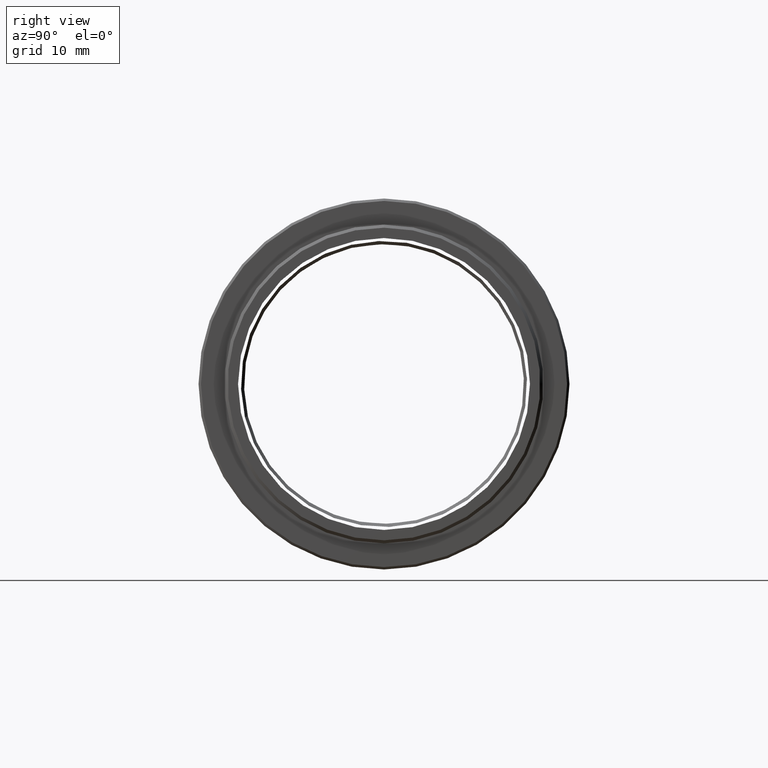
[diagram: clean part render]
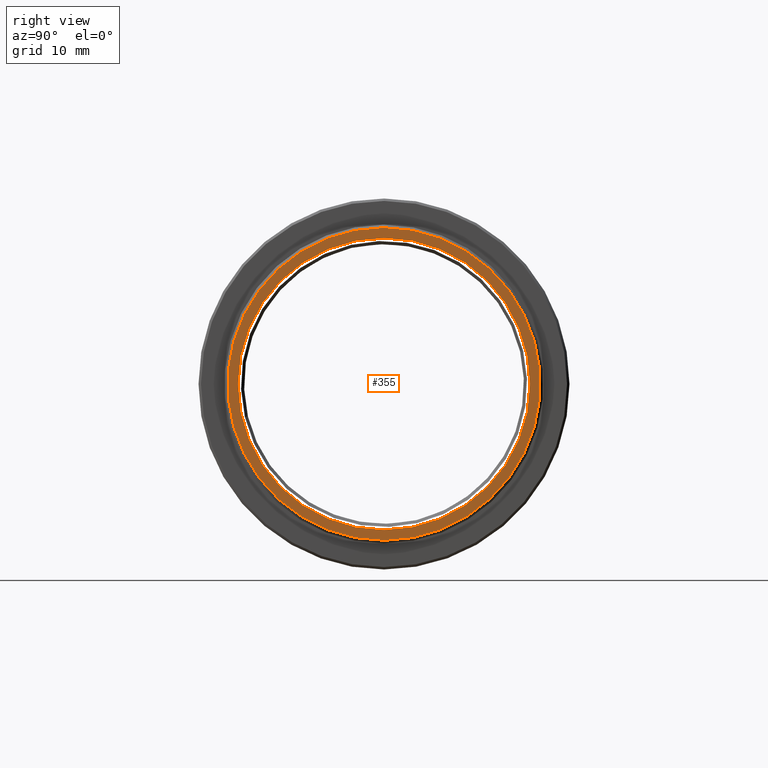
[diagram: same view with one face highlighted and labeled with its STEP entity id]
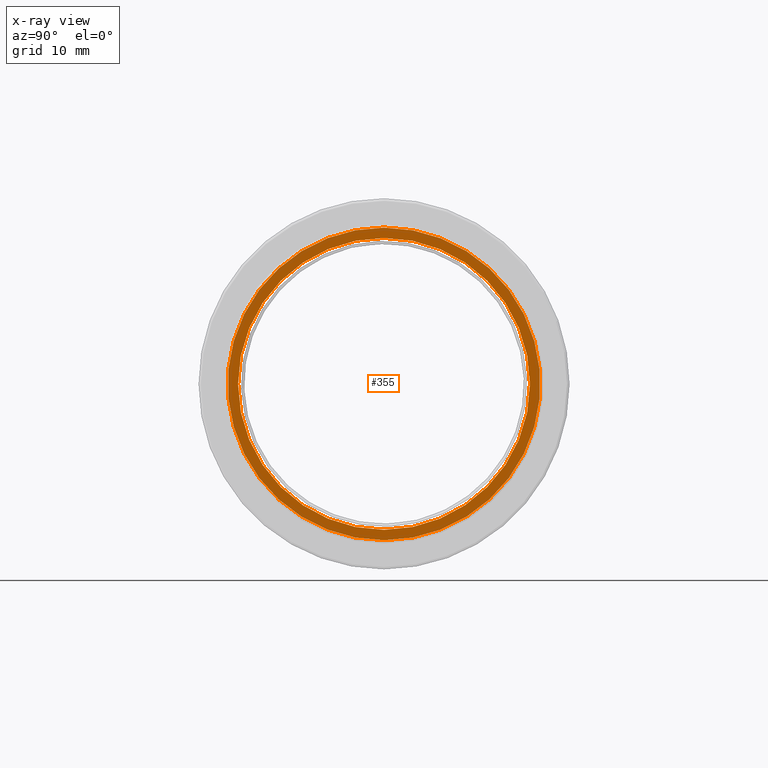
[diagram: x-ray of the same camera — body ghosted, the highlighted face saturated]
A machine part, right view. The second image highlights one B-rep face of the part: STEP entity #355.
The next image is the same camera in x-ray: the body ghosted, the highlighted face saturated — about 0% of this face is hidden behind the body in this view.
In plain terms, the highlighted planar face has unit normal (1, 0, 0).
Its self-contained STEP definition (entity closure, byte-faithful):
#61 = CIRCLE ( 'NONE', #424, 12.00000000000000178 ) ;
#90 = CARTESIAN_POINT ( 'NONE',  ( 6.525999999999982926, -20.10857142857141966, 0.000000000000000000 ) ) ;
#106 = VERTEX_POINT ( 'NONE', #1182 ) ;
#118 = EDGE_CURVE ( 'NONE', #1409, #106, #305, .T. ) ;
#157 = VERTEX_POINT ( 'NONE', #1545 ) ;
#198 = EDGE_CURVE ( 'NONE', #106, #1409, #61, .T. ) ;
#217 = FACE_BOUND ( 'NONE', #1197, .T. ) ;
#221 = DIRECTION ( 'NONE',  ( 1.000000000000000000, 0.000000000000000000, 0.000000000000000000 ) ) ;
#222 = DIRECTION ( 'NONE',  ( 0.000000000000000000, 0.000000000000000000, -1.000000000000000000 ) ) ;
#259 = CARTESIAN_POINT ( 'NONE',  ( 6.525999999999982926, -20.10857142857141966, 0.000000000000000000 ) ) ;
#262 = DIRECTION ( 'NONE',  ( 0.000000000000000000, 0.000000000000000000, -1.000000000000000000 ) ) ;
#271 = AXIS2_PLACEMENT_3D ( 'NONE', #90, #221, #960 ) ;
#305 = CIRCLE ( 'NONE', #1230, 12.00000000000000178 ) ;
#355 = ADVANCED_FACE ( 'NONE', ( #770, #217 ), #1227, .T. ) ;
#424 = AXIS2_PLACEMENT_3D ( 'NONE', #1206, #586, #1099 ) ;
#429 = CARTESIAN_POINT ( 'NONE',  ( 6.525999999999982926, -20.10857142857141966, 0.000000000000000000 ) ) ;
#486 = ORIENTED_EDGE ( 'NONE', *, *, #198, .F. ) ;
#494 = CARTESIAN_POINT ( 'NONE',  ( 6.525999999999982926, -20.10857142857141966, 0.000000000000000000 ) ) ;
#512 = DIRECTION ( 'NONE',  ( 1.000000000000000000, 0.000000000000000000, 0.000000000000000000 ) ) ;
#576 = AXIS2_PLACEMENT_3D ( 'NONE', #259, #512, #262 ) ;
#586 = DIRECTION ( 'NONE',  ( 1.000000000000000000, 0.000000000000000000, 0.000000000000000000 ) ) ;
#616 = DIRECTION ( 'NONE',  ( 0.000000000000000000, 0.000000000000000000, -1.000000000000000000 ) ) ;
#662 = VERTEX_POINT ( 'NONE', #1220 ) ;
#770 = FACE_OUTER_BOUND ( 'NONE', #953, .T. ) ;
#814 = ORIENTED_EDGE ( 'NONE', *, *, #1246, .T. ) ;
#876 = ORIENTED_EDGE ( 'NONE', *, *, #1086, .T. ) ;
#881 = CIRCLE ( 'NONE', #576, 12.85000000000001386 ) ;
#953 = EDGE_LOOP ( 'NONE', ( #876, #814 ) ) ;
#960 = DIRECTION ( 'NONE',  ( 0.000000000000000000, 0.000000000000000000, -1.000000000000000000 ) ) ;
#1042 = CIRCLE ( 'NONE', #271, 12.85000000000001386 ) ;
#1086 = EDGE_CURVE ( 'NONE', #662, #157, #1042, .T. ) ;
#1099 = DIRECTION ( 'NONE',  ( 0.000000000000000000, 0.000000000000000000, -1.000000000000000000 ) ) ;
#1182 = CARTESIAN_POINT ( 'NONE',  ( 6.525999999999982926, -20.10857142857141966, -12.00000000000000178 ) ) ;
#1197 = EDGE_LOOP ( 'NONE', ( #486, #1350 ) ) ;
#1206 = CARTESIAN_POINT ( 'NONE',  ( 6.525999999999982926, -20.10857142857141966, 0.000000000000000000 ) ) ;
#1220 = CARTESIAN_POINT ( 'NONE',  ( 6.525999999999982926, -20.10857142857141966, 12.85000000000001386 ) ) ;
#1227 = PLANE ( 'NONE',  #1258 ) ;
#1230 = AXIS2_PLACEMENT_3D ( 'NONE', #429, #1291, #222 ) ;
#1246 = EDGE_CURVE ( 'NONE', #157, #662, #881, .T. ) ;
#1258 = AXIS2_PLACEMENT_3D ( 'NONE', #494, #1349, #616 ) ;
#1291 = DIRECTION ( 'NONE',  ( 1.000000000000000000, 0.000000000000000000, 0.000000000000000000 ) ) ;
#1349 = DIRECTION ( 'NONE',  ( 1.000000000000000000, 0.000000000000000000, 0.000000000000000000 ) ) ;
#1350 = ORIENTED_EDGE ( 'NONE', *, *, #118, .F. ) ;
#1375 = CARTESIAN_POINT ( 'NONE',  ( 6.525999999999982926, -20.10857142857141966, 12.00000000000000178 ) ) ;
#1409 = VERTEX_POINT ( 'NONE', #1375 ) ;
#1545 = CARTESIAN_POINT ( 'NONE',  ( 6.525999999999982926, -20.10857142857141966, -12.85000000000001386 ) ) ;